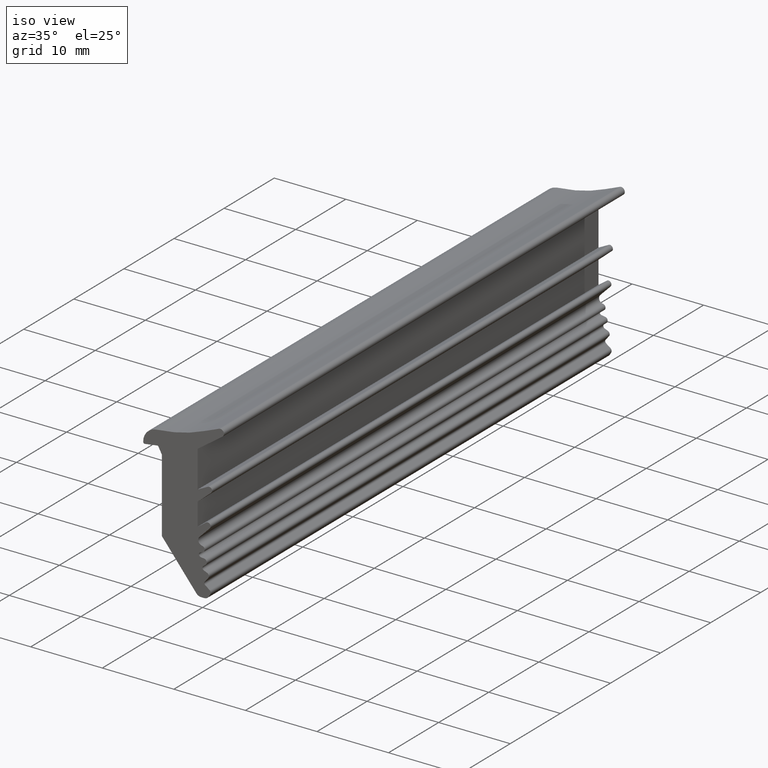
[diagram: clean part render]
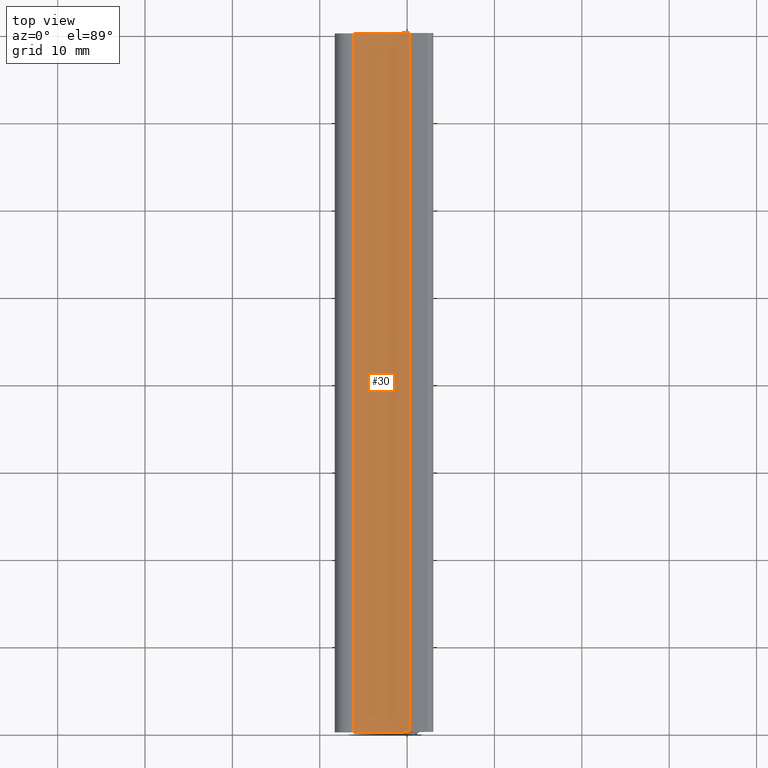
[diagram: tour spotlight — one face highlighted and labeled with its STEP entity id]
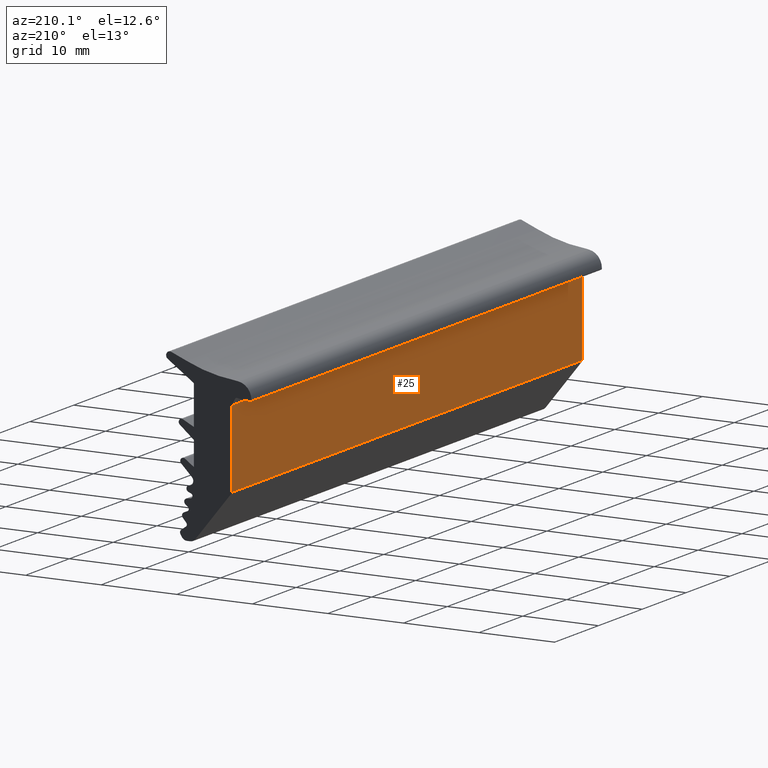
[diagram: tour spotlight — one face highlighted and labeled with its STEP entity id]
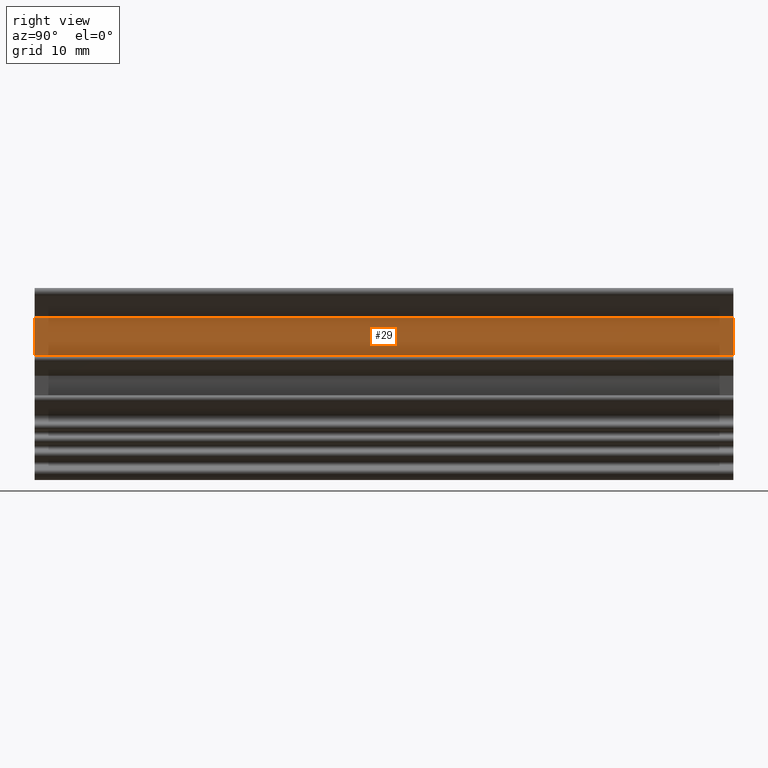
[diagram: tour spotlight — one face highlighted and labeled with its STEP entity id]
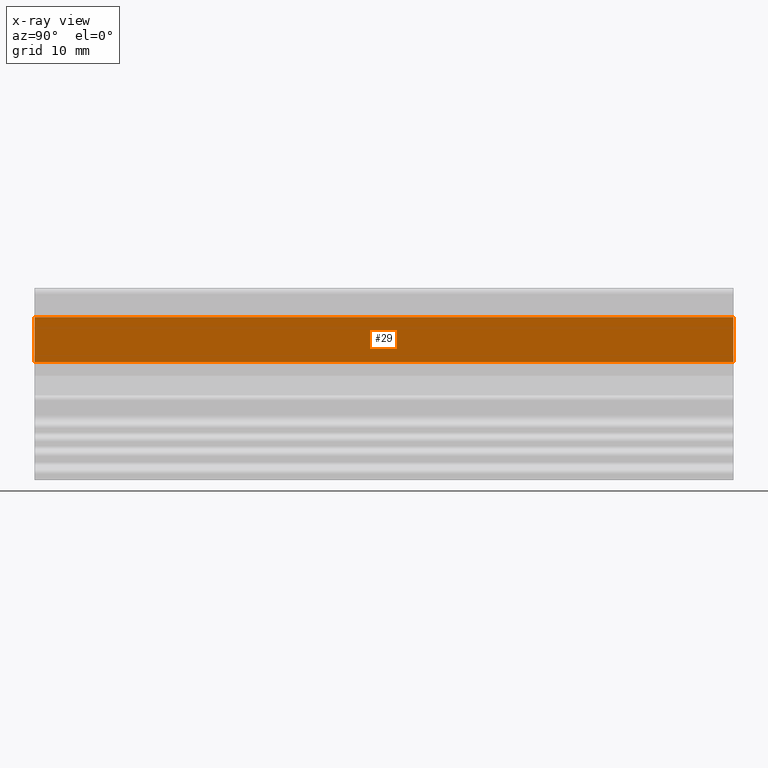
[diagram: x-ray of the same camera — body ghosted, this tour face saturated]
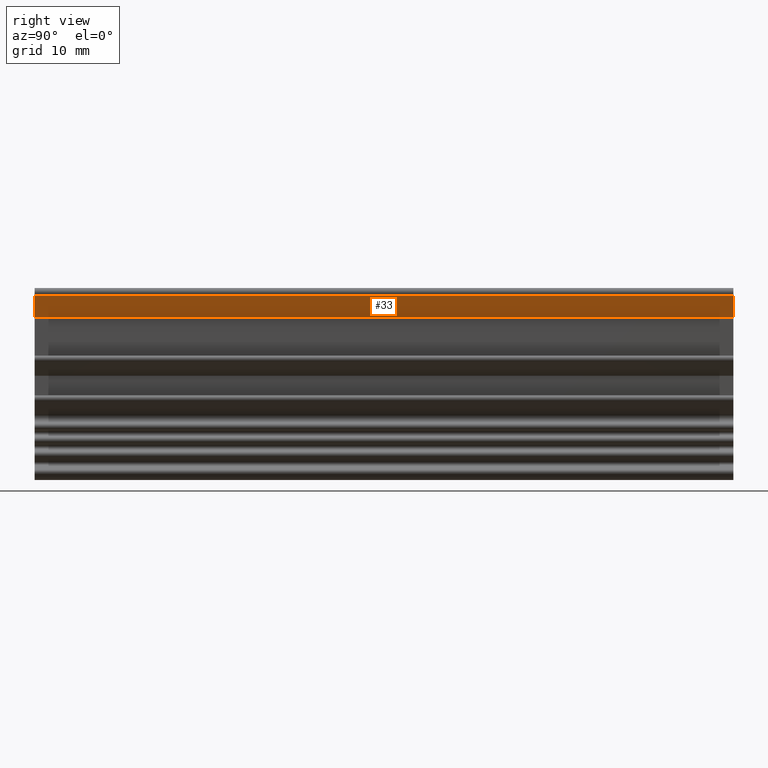
[diagram: tour spotlight — one face highlighted and labeled with its STEP entity id]
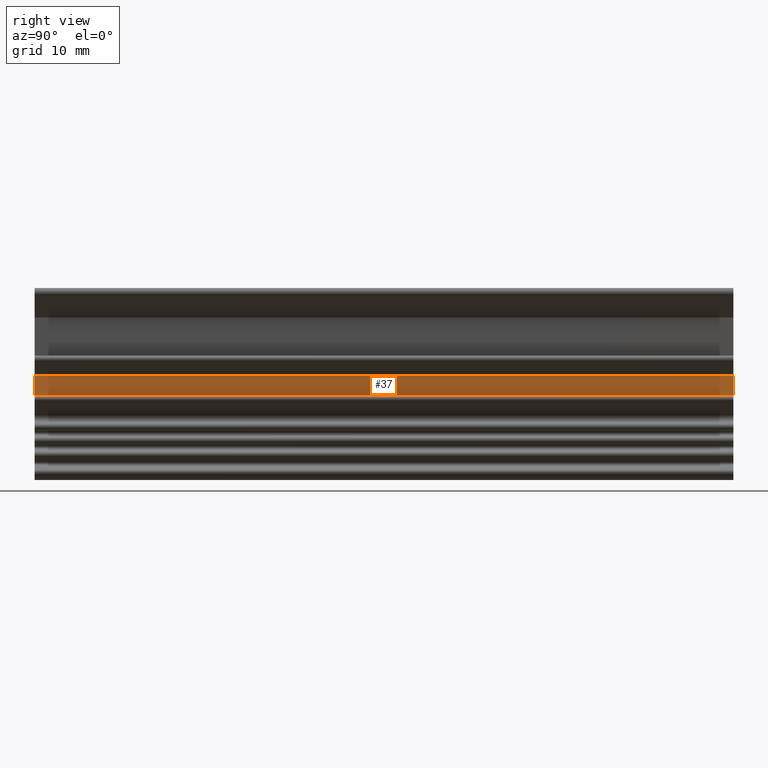
[diagram: tour spotlight — one face highlighted and labeled with its STEP entity id]
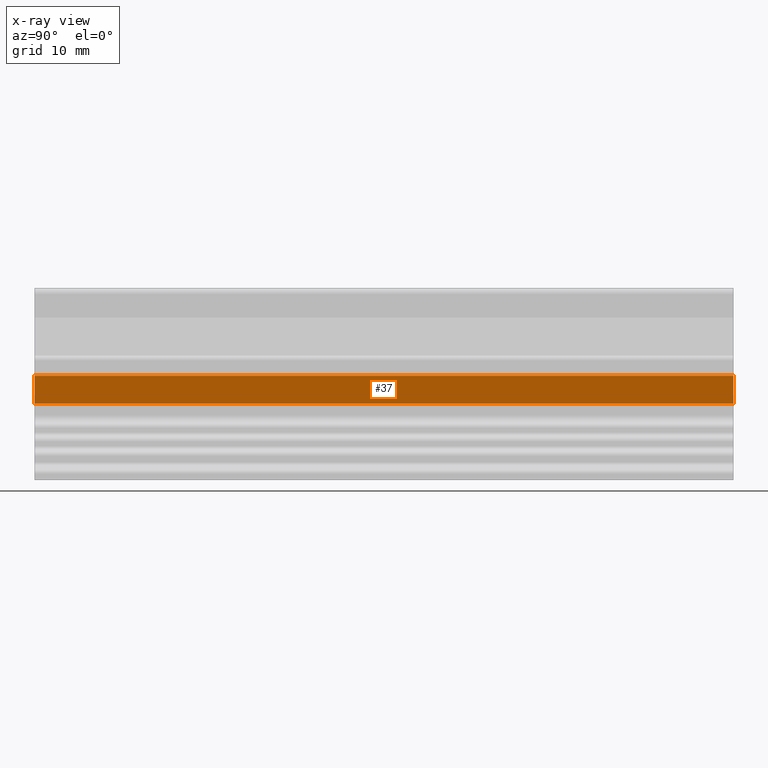
[diagram: x-ray of the same camera — body ghosted, this tour face saturated]
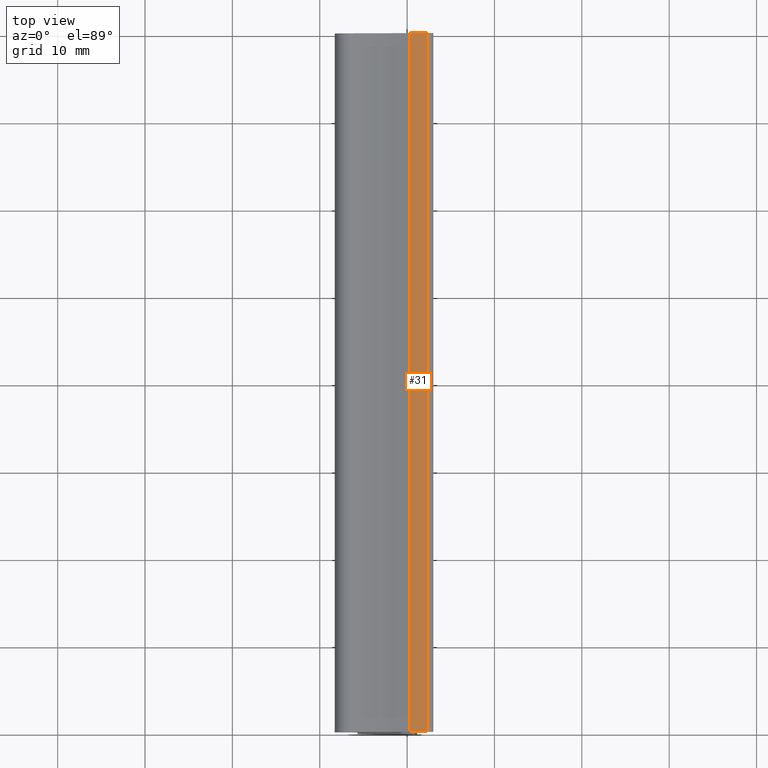
[diagram: tour spotlight — one face highlighted and labeled with its STEP entity id]
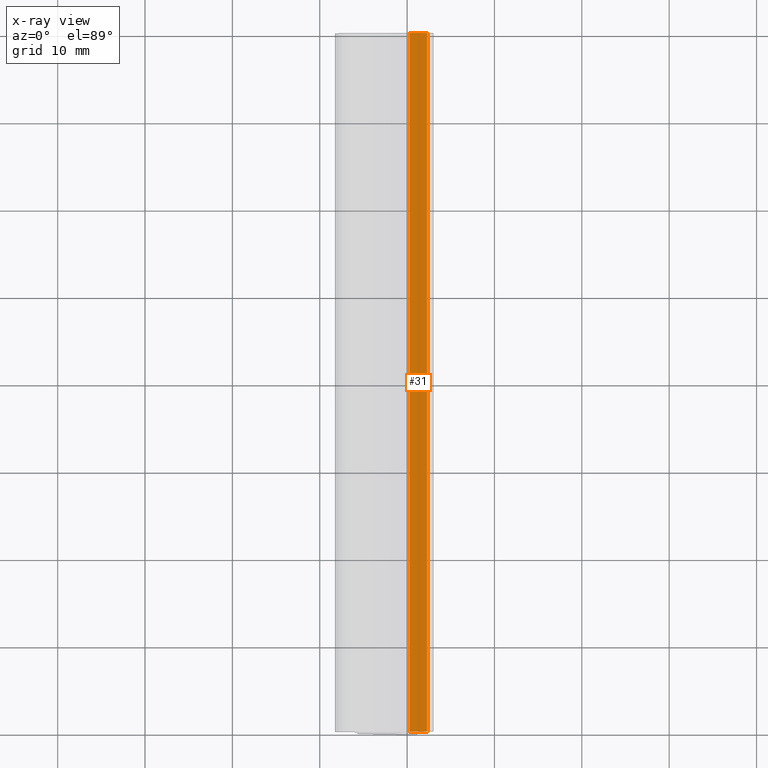
[diagram: x-ray of the same camera — body ghosted, this tour face saturated]
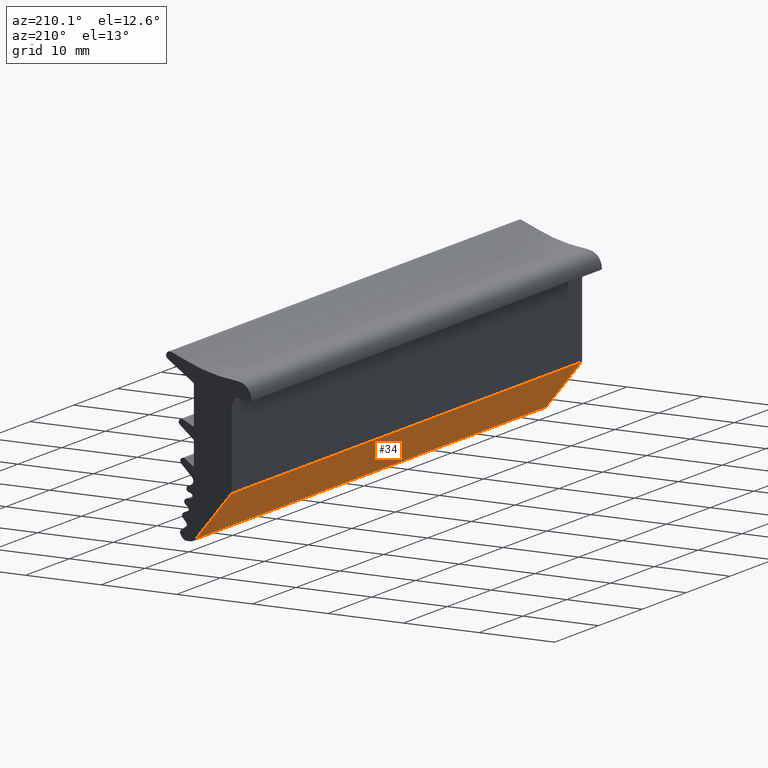
[diagram: tour spotlight — one face highlighted and labeled with its STEP entity id]
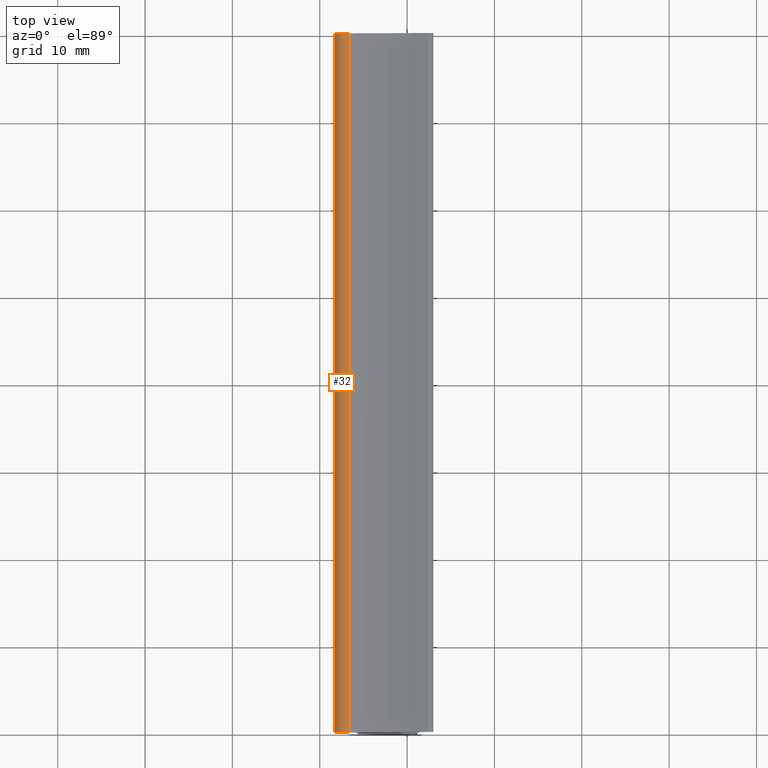
[diagram: tour spotlight — one face highlighted and labeled with its STEP entity id]
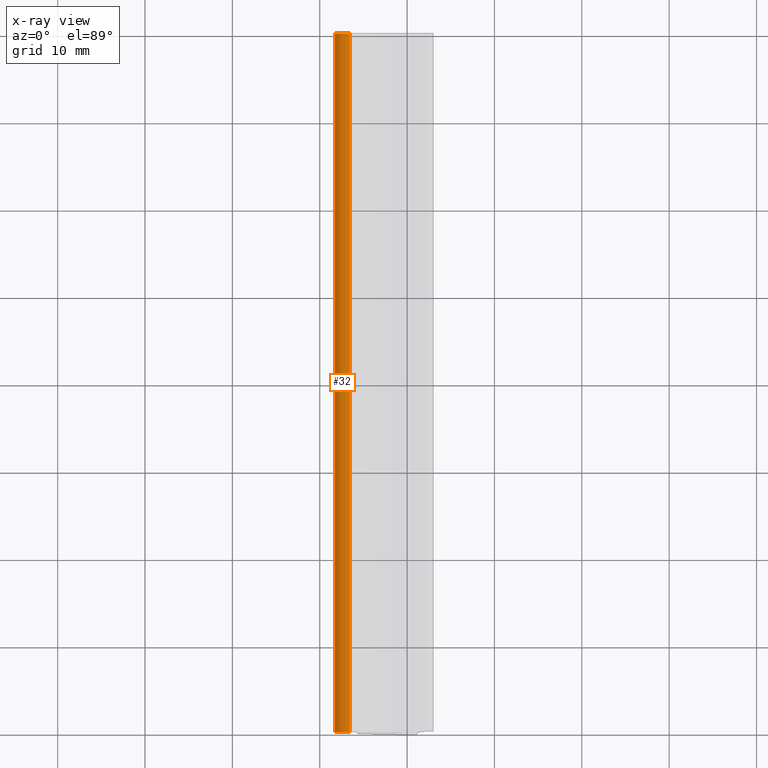
[diagram: x-ray of the same camera — body ghosted, this tour face saturated]
A machine part: a face-by-face anatomy tour. The part has 45 B-rep faces; the first image is the clean iso view, then the 8 largest visible faces are spotlighted one at a time (largest first), each with its STEP entity span.

Face 1 — top view, entity #30. In plain terms, the highlighted cylindrical surface (partial cylindrical patch) has radius 20.153 mm, axis along (0, 1, 0).
Definition (entity closure, byte-faithful):
#30 = ADVANCED_FACE ( 'NONE', ( #2000 ), #1999, .F. ) ;
#132 = AXIS2_PLACEMENT_3D ( 'NONE', #1325, #1339, #1338 ) ;
#135 = AXIS2_PLACEMENT_3D ( 'NONE', #1658, #1636, #1659 ) ;
#172 = AXIS2_PLACEMENT_3D ( 'NONE', #915, #927, #962 ) ;
#307 = ORIENTED_EDGE ( 'NONE', *, *, #615, .F. ) ;
#323 = ORIENTED_EDGE ( 'NONE', *, *, #603, .F. ) ;
#325 = ORIENTED_EDGE ( 'NONE', *, *, #627, .T. ) ;
#335 = ORIENTED_EDGE ( 'NONE', *, *, #673, .F. ) ;
#362 = EDGE_LOOP ( 'NONE', ( #335, #325, #323, #307 ) ) ;
#603 = EDGE_CURVE ( 'NONE', #1101, #1008, #1855, .T. ) ;
#615 = EDGE_CURVE ( 'NONE', #1019, #1101, #1868, .T. ) ;
#627 = EDGE_CURVE ( 'NONE', #1113, #1008, #1948, .T. ) ;
#673 = EDGE_CURVE ( 'NONE', #1113, #1019, #1957, .T. ) ;
#915 = CARTESIAN_POINT ( 'NONE',  ( -7.680258200792700100, 80.00000000000000000, 39.62568087797780000 ) ) ;
#927 = DIRECTION ( 'NONE',  ( 0.0000000000000000000, 1.000000000000000000, 0.0000000000000000000 ) ) ;
#962 = DIRECTION ( 'NONE',  ( 0.0000000000000000000, 0.0000000000000000000, 1.000000000000000000 ) ) ;
#1008 = VERTEX_POINT ( 'NONE', #1557 ) ;
#1019 = VERTEX_POINT ( 'NONE', #1552 ) ;
#1101 = VERTEX_POINT ( 'NONE', #1543 ) ;
#1113 = VERTEX_POINT ( 'NONE', #1541 ) ;
#1318 = DIRECTION ( 'NONE',  ( 0.0000000000000000000, 1.000000000000000000, 0.0000000000000000000 ) ) ;
#1325 = CARTESIAN_POINT ( 'NONE',  ( -7.680258200792700100, 0.0000000000000000000, 39.62568087797780000 ) ) ;
#1338 = DIRECTION ( 'NONE',  ( 0.0000000000000000000, 0.0000000000000000000, 1.000000000000000000 ) ) ;
#1339 = DIRECTION ( 'NONE',  ( 0.0000000000000000000, 1.000000000000000000, 0.0000000000000000000 ) ) ;
#1377 = DIRECTION ( 'NONE',  ( -0.0000000000000000000, -1.000000000000000000, -0.0000000000000000000 ) ) ;
#1378 = CARTESIAN_POINT ( 'NONE',  ( 0.2481858055058310300, 80.00000000000000000, 21.09779813389904400 ) ) ;
#1541 = CARTESIAN_POINT ( 'NONE',  ( 0.2481865698910698500, 80.00000000000000000, 21.09779846099450000 ) ) ;
#1543 = CARTESIAN_POINT ( 'NONE',  ( -6.109770962250928900, 0.0000000000000000000, 19.53398525085564000 ) ) ;
#1552 = CARTESIAN_POINT ( 'NONE',  ( 0.2481865698910698500, 0.0000000000000000000, 21.09779846099450000 ) ) ;
#1557 = CARTESIAN_POINT ( 'NONE',  ( -6.109770962250928900, 80.00000000000000000, 19.53398525085564000 ) ) ;
#1636 = DIRECTION ( 'NONE',  ( 0.0000000000000000000, 1.000000000000000000, 0.0000000000000000000 ) ) ;
#1658 = CARTESIAN_POINT ( 'NONE',  ( -7.680258200792700100, 80.00000000000000000, 39.62568087797780000 ) ) ;
#1659 = DIRECTION ( 'NONE',  ( 0.0000000000000000000, 0.0000000000000000000, 1.000000000000000000 ) ) ;
#1707 = CARTESIAN_POINT ( 'NONE',  ( -6.109770747221352500, 80.00000000000000000, 19.53398526766364200 ) ) ;
#1828 = VECTOR ( 'NONE', #1318, 1000.000000000000000 ) ;
#1844 = VECTOR ( 'NONE', #1377, 1000.000000000000000 ) ;
#1855 = LINE ( 'NONE', #1707, #1828 ) ;
#1868 = CIRCLE ( 'NONE', #132, 20.15298149999999900 ) ;
#1948 = CIRCLE ( 'NONE', #135, 20.15298149999999900 ) ;
#1957 = LINE ( 'NONE', #1378, #1844 ) ;
#1999 = CYLINDRICAL_SURFACE ( 'NONE', #172, 20.15298149999999900 ) ;
#2000 = FACE_OUTER_BOUND ( 'NONE', #362, .T. ) ;

Face 2 — auxiliary view, entity #25. In plain terms, the highlighted planar face has unit normal (-1, 0, -0).
Definition (entity closure, byte-faithful):
#25 = ADVANCED_FACE ( 'NONE', ( #2058 ), #992, .T. ) ;
#48 = AXIS2_PLACEMENT_3D ( 'NONE', #1039, #977, #976 ) ;
#251 = ORIENTED_EDGE ( 'NONE', *, *, #600, .T. ) ;
#285 = ORIENTED_EDGE ( 'NONE', *, *, #591, .T. ) ;
#401 = ORIENTED_EDGE ( 'NONE', *, *, #616, .T. ) ;
#493 = EDGE_LOOP ( 'NONE', ( #285, #543, #251, #401 ) ) ;
#543 = ORIENTED_EDGE ( 'NONE', *, *, #678, .T. ) ;
#591 = EDGE_CURVE ( 'NONE', #1002, #1022, #1880, .T. ) ;
#600 = EDGE_CURVE ( 'NONE', #1296, #1290, #1866, .T. ) ;
#616 = EDGE_CURVE ( 'NONE', #1290, #1002, #1936, .T. ) ;
#678 = EDGE_CURVE ( 'NONE', #1022, #1296, #1752, .T. ) ;
#976 = DIRECTION ( 'NONE',  ( -1.703246704734860000E-016, 0.0000000000000000000, 1.000000000000000000 ) ) ;
#977 = DIRECTION ( 'NONE',  ( -1.000000000000000000, 0.0000000000000000000, -1.703246704734860000E-016 ) ) ;
#992 = PLANE ( 'NONE',  #48 ) ;
#1002 = VERTEX_POINT ( 'NONE', #1560 ) ;
#1022 = VERTEX_POINT ( 'NONE', #1550 ) ;
#1039 = CARTESIAN_POINT ( 'NONE',  ( -5.679563955479530100, 80.00200000000001000, 11.45032763000630100 ) ) ;
#1290 = VERTEX_POINT ( 'NONE', #1499 ) ;
#1296 = VERTEX_POINT ( 'NONE', #1495 ) ;
#1347 = DIRECTION ( 'NONE',  ( -0.0000000000000000000, -1.000000000000000000, -0.0000000000000000000 ) ) ;
#1495 = CARTESIAN_POINT ( 'NONE',  ( -5.679563955478427900, 80.00000000000000000, 16.54272989667383300 ) ) ;
#1499 = CARTESIAN_POINT ( 'NONE',  ( -5.679563955479529200, 80.00000000000500200, 6.357925363344870500 ) ) ;
#1550 = CARTESIAN_POINT ( 'NONE',  ( -5.679563955478449200, 0.0000000000000000000, 16.54272989667387600 ) ) ;
#1560 = CARTESIAN_POINT ( 'NONE',  ( -5.679563955479529200, 0.0000000000000000000, 6.357925363344870500 ) ) ;
#1586 = CARTESIAN_POINT ( 'NONE',  ( -5.679563955479529200, 80.00200000000001000, 6.357925363349870000 ) ) ;
#1613 = DIRECTION ( 'NONE',  ( 0.0000000000000000000, 1.000000000000000000, 0.0000000000000000000 ) ) ;
#1614 = CARTESIAN_POINT ( 'NONE',  ( -5.679563955479531000, 80.00200000000001000, 16.54272989667280000 ) ) ;
#1752 = LINE ( 'NONE', #1614, #1791 ) ;
#1791 = VECTOR ( 'NONE', #1613, 1000.000000000000000 ) ;
#1835 = VECTOR ( 'NONE', #1347, 1000.000000000000000 ) ;
#1842 = VECTOR ( 'NONE', #1966, 1000.000000000000000 ) ;
#1866 = LINE ( 'NONE', #1965, #1842 ) ;
#1880 = LINE ( 'NONE', #1960, #1906 ) ;
#1906 = VECTOR ( 'NONE', #1962, 1000.000000000000000 ) ;
#1936 = LINE ( 'NONE', #1586, #1835 ) ;
#1960 = CARTESIAN_POINT ( 'NONE',  ( -5.679563955479530100, 0.0000000000000000000, 11.45032763000630100 ) ) ;
#1962 = DIRECTION ( 'NONE',  ( -1.703246704734860000E-016, 0.0000000000000000000, 1.000000000000000000 ) ) ;
#1965 = CARTESIAN_POINT ( 'NONE',  ( -5.679563955479530100, 80.00000000000000000, 11.45032763000630100 ) ) ;
#1966 = DIRECTION ( 'NONE',  ( 1.703246704734860000E-016, -0.0000000000000000000, -1.000000000000000000 ) ) ;
#2058 = FACE_OUTER_BOUND ( 'NONE', #493, .T. ) ;

Face 3 — right view, entity #29. An x-ray twin of the same camera follows (body ghosted, this face saturated) — the face is partly hidden behind the body. In plain terms, the highlighted planar face has unit normal (-1, 0, -0).
Definition (entity closure, byte-faithful):
#29 = ADVANCED_FACE ( 'NONE', ( #2008 ), #938, .F. ) ;
#188 = AXIS2_PLACEMENT_3D ( 'NONE', #939, #926, #925 ) ;
#208 = ORIENTED_EDGE ( 'NONE', *, *, #733, .T. ) ;
#305 = EDGE_LOOP ( 'NONE', ( #438, #439, #208, #415 ) ) ;
#415 = ORIENTED_EDGE ( 'NONE', *, *, #700, .F. ) ;
#438 = ORIENTED_EDGE ( 'NONE', *, *, #629, .F. ) ;
#439 = ORIENTED_EDGE ( 'NONE', *, *, #699, .T. ) ;
#629 = EDGE_CURVE ( 'NONE', #1300, #1279, #1884, .T. ) ;
#699 = EDGE_CURVE ( 'NONE', #1300, #1027, #1722, .T. ) ;
#700 = EDGE_CURVE ( 'NONE', #1279, #864, #1720, .T. ) ;
#733 = EDGE_CURVE ( 'NONE', #1027, #864, #1737, .T. ) ;
#864 = VERTEX_POINT ( 'NONE', #1574 ) ;
#925 = DIRECTION ( 'NONE',  ( -1.233365103671440100E-016, 0.0000000000000000000, 1.000000000000000000 ) ) ;
#926 = DIRECTION ( 'NONE',  ( -1.000000000000000000, 0.0000000000000000000, -1.233365103671440100E-016 ) ) ;
#938 = PLANE ( 'NONE',  #188 ) ;
#939 = CARTESIAN_POINT ( 'NONE',  ( -0.6795639554795269700, 80.00200000000001000, 9.368864531527640000 ) ) ;
#1027 = VERTEX_POINT ( 'NONE', #1549 ) ;
#1279 = VERTEX_POINT ( 'NONE', #1510 ) ;
#1300 = VERTEX_POINT ( 'NONE', #1493 ) ;
#1349 = CARTESIAN_POINT ( 'NONE',  ( -0.6795639554795279700, 0.0000000000000000000, 8.901853455270750000 ) ) ;
#1456 = CARTESIAN_POINT ( 'NONE',  ( -0.6795639554795279700, 80.00000000000000000, 8.901853455270750000 ) ) ;
#1457 = DIRECTION ( 'NONE',  ( -0.0000000000000000000, 0.0000000000000000000, 1.000000000000000000 ) ) ;
#1461 = DIRECTION ( 'NONE',  ( -0.0000000000000000000, 0.0000000000000000000, 1.000000000000000000 ) ) ;
#1493 = CARTESIAN_POINT ( 'NONE',  ( -0.6795639554774786100, 80.00000000000166300, 13.46174833956209600 ) ) ;
#1510 = CARTESIAN_POINT ( 'NONE',  ( -0.6795639554774786100, -9.251858538542970600E-015, 13.46174833956209600 ) ) ;
#1549 = CARTESIAN_POINT ( 'NONE',  ( -0.6795639554790631200, 80.00000000000000000, 18.59899661261932400 ) ) ;
#1574 = CARTESIAN_POINT ( 'NONE',  ( -0.6795639554790631200, 0.0000000000000000000, 18.59899661261965100 ) ) ;
#1620 = DIRECTION ( 'NONE',  ( -0.0000000000000000000, -1.000000000000000000, 0.0000000000000000000 ) ) ;
#1621 = CARTESIAN_POINT ( 'NONE',  ( -0.6795639554781334200, 80.00000000000000000, 18.59899661261834300 ) ) ;
#1646 = DIRECTION ( 'NONE',  ( -0.0000000000000000000, -1.000000000000000000, -0.0000000000000000000 ) ) ;
#1647 = CARTESIAN_POINT ( 'NONE',  ( -0.6795639554795275300, 80.00200000000001000, 13.46174833956610000 ) ) ;
#1720 = LINE ( 'NONE', #1349, #1724 ) ;
#1722 = LINE ( 'NONE', #1456, #1723 ) ;
#1723 = VECTOR ( 'NONE', #1457, 1000.000000000000000 ) ;
#1724 = VECTOR ( 'NONE', #1461, 1000.000000000000000 ) ;
#1737 = LINE ( 'NONE', #1621, #1738 ) ;
#1738 = VECTOR ( 'NONE', #1620, 1000.000000000000000 ) ;
#1882 = VECTOR ( 'NONE', #1646, 1000.000000000000000 ) ;
#1884 = LINE ( 'NONE', #1647, #1882 ) ;
#2008 = FACE_OUTER_BOUND ( 'NONE', #305, .T. ) ;

Face 4 — right view, entity #33. In plain terms, the highlighted planar face has unit normal (-0.5797, 0, 0.8148).
Definition (entity closure, byte-faithful):
#33 = ADVANCED_FACE ( 'NONE', ( #2120 ), #890, .F. ) ;
#187 = AXIS2_PLACEMENT_3D ( 'NONE', #891, #879, #878 ) ;
#212 = ORIENTED_EDGE ( 'NONE', *, *, #630, .F. ) ;
#309 = ORIENTED_EDGE ( 'NONE', *, *, #739, .F. ) ;
#361 = EDGE_LOOP ( 'NONE', ( #440, #309, #212, #446 ) ) ;
#440 = ORIENTED_EDGE ( 'NONE', *, *, #618, .T. ) ;
#446 = ORIENTED_EDGE ( 'NONE', *, *, #733, .F. ) ;
#618 = EDGE_CURVE ( 'NONE', #1027, #1285, #1950, .T. ) ;
#630 = EDGE_CURVE ( 'NONE', #864, #1156, #1826, .T. ) ;
#733 = EDGE_CURVE ( 'NONE', #1027, #864, #1737, .T. ) ;
#739 = EDGE_CURVE ( 'NONE', #1156, #1285, #1744, .T. ) ;
#864 = VERTEX_POINT ( 'NONE', #1574 ) ;
#878 = DIRECTION ( 'NONE',  ( 0.8148313311435527700, 0.0000000000000000000, 0.5796981126300359000 ) ) ;
#879 = DIRECTION ( 'NONE',  ( -0.5796981126300359000, 0.0000000000000000000, 0.8148313311435527700 ) ) ;
#890 = PLANE ( 'NONE',  #187 ) ;
#891 = CARTESIAN_POINT ( 'NONE',  ( 2.788702692518199900, 80.00000000000000000, 21.06643687061570000 ) ) ;
#1027 = VERTEX_POINT ( 'NONE', #1549 ) ;
#1156 = VERTEX_POINT ( 'NONE', #1539 ) ;
#1285 = VERTEX_POINT ( 'NONE', #1504 ) ;
#1352 = DIRECTION ( 'NONE',  ( 0.0000000000000000000, 1.000000000000000000, -0.0000000000000000000 ) ) ;
#1362 = CARTESIAN_POINT ( 'NONE',  ( -0.6795639554795279700, 80.00000000000000000, 18.59899661262030100 ) ) ;
#1363 = DIRECTION ( 'NONE',  ( 0.8148313311438800700, 0.0000000000000000000, 0.5796981126295758200 ) ) ;
#1504 = CARTESIAN_POINT ( 'NONE',  ( 2.788702692518207000, 80.00000000000000000, 21.06643687061568900 ) ) ;
#1539 = CARTESIAN_POINT ( 'NONE',  ( 2.788702692518207000, 0.0000000000000000000, 21.06643687061568900 ) ) ;
#1549 = CARTESIAN_POINT ( 'NONE',  ( -0.6795639554790631200, 80.00000000000000000, 18.59899661261932400 ) ) ;
#1574 = CARTESIAN_POINT ( 'NONE',  ( -0.6795639554790631200, 0.0000000000000000000, 18.59899661261965100 ) ) ;
#1620 = DIRECTION ( 'NONE',  ( -0.0000000000000000000, -1.000000000000000000, 0.0000000000000000000 ) ) ;
#1621 = CARTESIAN_POINT ( 'NONE',  ( -0.6795639554781334200, 80.00000000000000000, 18.59899661261834300 ) ) ;
#1651 = DIRECTION ( 'NONE',  ( 0.8148313311438800700, 0.0000000000000000000, 0.5796981126295758200 ) ) ;
#1652 = CARTESIAN_POINT ( 'NONE',  ( -0.6795639554795279700, 0.0000000000000000000, 18.59899661262030100 ) ) ;
#1684 = CARTESIAN_POINT ( 'NONE',  ( 2.788702692518199900, 80.00000000000000000, 21.06643687061570000 ) ) ;
#1737 = LINE ( 'NONE', #1621, #1738 ) ;
#1738 = VECTOR ( 'NONE', #1620, 1000.000000000000000 ) ;
#1744 = LINE ( 'NONE', #1684, #1745 ) ;
#1745 = VECTOR ( 'NONE', #1352, 1000.000000000000000 ) ;
#1826 = LINE ( 'NONE', #1652, #1885 ) ;
#1833 = VECTOR ( 'NONE', #1363, 1000.000000000000000 ) ;
#1885 = VECTOR ( 'NONE', #1651, 1000.000000000000000 ) ;
#1950 = LINE ( 'NONE', #1362, #1833 ) ;
#2120 = FACE_OUTER_BOUND ( 'NONE', #361, .T. ) ;

Face 5 — right view, entity #37. An x-ray twin of the same camera follows (body ghosted, this face saturated) — the face is partly hidden behind the body. In plain terms, the highlighted planar face has unit normal (-1, 0, -0).
Definition (entity closure, byte-faithful):
#37 = ADVANCED_FACE ( 'NONE', ( #2086 ), #842, .F. ) ;
#175 = AXIS2_PLACEMENT_3D ( 'NONE', #852, #1301, #1239 ) ;
#314 = ORIENTED_EDGE ( 'NONE', *, *, #674, .F. ) ;
#321 = ORIENTED_EDGE ( 'NONE', *, *, #592, .T. ) ;
#322 = ORIENTED_EDGE ( 'NONE', *, *, #594, .T. ) ;
#324 = ORIENTED_EDGE ( 'NONE', *, *, #668, .F. ) ;
#474 = EDGE_LOOP ( 'NONE', ( #314, #322, #321, #324 ) ) ;
#592 = EDGE_CURVE ( 'NONE', #1006, #997, #1875, .T. ) ;
#594 = EDGE_CURVE ( 'NONE', #1030, #1006, #1949, .T. ) ;
#668 = EDGE_CURVE ( 'NONE', #1268, #997, #1846, .T. ) ;
#674 = EDGE_CURVE ( 'NONE', #1030, #1268, #1787, .T. ) ;
#842 = PLANE ( 'NONE',  #175 ) ;
#852 = CARTESIAN_POINT ( 'NONE',  ( -0.6795639554795269700, 80.00200000000001000, 9.368864531527640000 ) ) ;
#997 = VERTEX_POINT ( 'NONE', #1562 ) ;
#1006 = VERTEX_POINT ( 'NONE', #1558 ) ;
#1030 = VERTEX_POINT ( 'NONE', #1547 ) ;
#1239 = DIRECTION ( 'NONE',  ( -1.233365103671440100E-016, 0.0000000000000000000, 1.000000000000000000 ) ) ;
#1268 = VERTEX_POINT ( 'NONE', #1520 ) ;
#1301 = DIRECTION ( 'NONE',  ( -1.000000000000000000, 0.0000000000000000000, -1.233365103671440100E-016 ) ) ;
#1376 = DIRECTION ( 'NONE',  ( -0.0000000000000000000, 0.0000000000000000000, 1.000000000000000000 ) ) ;
#1394 = CARTESIAN_POINT ( 'NONE',  ( -0.6795639554795268600, 80.00200000000001000, 8.761659686552729200 ) ) ;
#1395 = DIRECTION ( 'NONE',  ( -0.0000000000000000000, -1.000000000000000000, -0.0000000000000000000 ) ) ;
#1415 = CARTESIAN_POINT ( 'NONE',  ( -0.6795639554795269700, 0.0000000000000000000, 8.901853455270750000 ) ) ;
#1520 = CARTESIAN_POINT ( 'NONE',  ( -0.6795639554768067000, 0.0000000000000000000, 8.761659686548952700 ) ) ;
#1547 = CARTESIAN_POINT ( 'NONE',  ( -0.6795639554768068100, 80.00000000000332500, 8.761659686548952700 ) ) ;
#1558 = CARTESIAN_POINT ( 'NONE',  ( -0.6795639554792969300, 80.00000000000000000, 11.93140918871794300 ) ) ;
#1562 = CARTESIAN_POINT ( 'NONE',  ( -0.6795639554792970400, 0.0000000000000000000, 11.93140918871803200 ) ) ;
#1785 = VECTOR ( 'NONE', #1395, 1000.000000000000000 ) ;
#1787 = LINE ( 'NONE', #1394, #1785 ) ;
#1846 = LINE ( 'NONE', #1415, #1923 ) ;
#1865 = VECTOR ( 'NONE', #1978, 1000.000000000000000 ) ;
#1875 = LINE ( 'NONE', #1959, #1898 ) ;
#1898 = VECTOR ( 'NONE', #1970, 1000.000000000000000 ) ;
#1923 = VECTOR ( 'NONE', #1376, 1000.000000000000000 ) ;
#1949 = LINE ( 'NONE', #1982, #1865 ) ;
#1959 = CARTESIAN_POINT ( 'NONE',  ( -0.6795639554788368600, 80.00000000000000000, 11.93140918871749400 ) ) ;
#1970 = DIRECTION ( 'NONE',  ( -0.0000000000000000000, -1.000000000000000000, 0.0000000000000000000 ) ) ;
#1978 = DIRECTION ( 'NONE',  ( -0.0000000000000000000, 0.0000000000000000000, 1.000000000000000000 ) ) ;
#1982 = CARTESIAN_POINT ( 'NONE',  ( -0.6795639554795269700, 80.00000000000000000, 8.901853455270750000 ) ) ;
#2086 = FACE_OUTER_BOUND ( 'NONE', #474, .T. ) ;

Face 6 — top view, entity #31. An x-ray twin of the same camera follows (body ghosted, this face saturated) — the face is partly hidden behind the body. In plain terms, the highlighted planar face has unit normal (0.3769, 0, -0.9262).
Definition (entity closure, byte-faithful):
#31 = ADVANCED_FACE ( 'NONE', ( #1991 ), #913, .F. ) ;
#156 = AXIS2_PLACEMENT_3D ( 'NONE', #914, #903, #902 ) ;
#214 = ORIENTED_EDGE ( 'NONE', *, *, #744, .T. ) ;
#296 = ORIENTED_EDGE ( 'NONE', *, *, #746, .F. ) ;
#302 = ORIENTED_EDGE ( 'NONE', *, *, #698, .F. ) ;
#303 = ORIENTED_EDGE ( 'NONE', *, *, #673, .T. ) ;
#312 = EDGE_LOOP ( 'NONE', ( #296, #214, #303, #302 ) ) ;
#673 = EDGE_CURVE ( 'NONE', #1113, #1019, #1957, .T. ) ;
#698 = EDGE_CURVE ( 'NONE', #1306, #1019, #1790, .T. ) ;
#744 = EDGE_CURVE ( 'NONE', #1255, #1113, #1756, .T. ) ;
#746 = EDGE_CURVE ( 'NONE', #1255, #1306, #1763, .T. ) ;
#902 = DIRECTION ( 'NONE',  ( -0.9262463133118958900, 0.0000000000000000000, -0.3769187804768039400 ) ) ;
#903 = DIRECTION ( 'NONE',  ( 0.3769187804768039900, 0.0000000000000000000, -0.9262463133118960000 ) ) ;
#913 = PLANE ( 'NONE',  #156 ) ;
#914 = CARTESIAN_POINT ( 'NONE',  ( 0.2481857938118860200, 80.00000000000000000, 21.09779816122650000 ) ) ;
#1019 = VERTEX_POINT ( 'NONE', #1552 ) ;
#1113 = VERTEX_POINT ( 'NONE', #1541 ) ;
#1255 = VERTEX_POINT ( 'NONE', #1531 ) ;
#1306 = VERTEX_POINT ( 'NONE', #1490 ) ;
#1369 = DIRECTION ( 'NONE',  ( -0.0000000000000000000, -1.000000000000000000, -0.0000000000000000000 ) ) ;
#1377 = DIRECTION ( 'NONE',  ( -0.0000000000000000000, -1.000000000000000000, -0.0000000000000000000 ) ) ;
#1378 = CARTESIAN_POINT ( 'NONE',  ( 0.2481858055058310300, 80.00000000000000000, 21.09779813389904400 ) ) ;
#1424 = DIRECTION ( 'NONE',  ( -0.9262463133119052100, 0.0000000000000000000, -0.3769187804767812300 ) ) ;
#1433 = DIRECTION ( 'NONE',  ( -0.9262463133119052100, 0.0000000000000000000, -0.3769187804767812300 ) ) ;
#1442 = CARTESIAN_POINT ( 'NONE',  ( 2.310394245966140000, 0.0000000000000000000, 21.93697569284399800 ) ) ;
#1490 = CARTESIAN_POINT ( 'NONE',  ( 2.310394245966135100, -1.040834085586084300E-014, 21.93697569284400800 ) ) ;
#1531 = CARTESIAN_POINT ( 'NONE',  ( 2.310394245966135100, 80.00000000000000000, 21.93697569284400800 ) ) ;
#1541 = CARTESIAN_POINT ( 'NONE',  ( 0.2481865698910698500, 80.00000000000000000, 21.09779846099450000 ) ) ;
#1552 = CARTESIAN_POINT ( 'NONE',  ( 0.2481865698910698500, 0.0000000000000000000, 21.09779846099450000 ) ) ;
#1587 = CARTESIAN_POINT ( 'NONE',  ( 2.310394245966140000, 80.00000000000000000, 21.93697569284399800 ) ) ;
#1588 = CARTESIAN_POINT ( 'NONE',  ( 2.310394245966120400, 80.00000000000000000, 21.93697569284404700 ) ) ;
#1755 = VECTOR ( 'NONE', #1433, 999.9999999999998900 ) ;
#1756 = LINE ( 'NONE', #1587, #1757 ) ;
#1757 = VECTOR ( 'NONE', #1424, 999.9999999999998900 ) ;
#1763 = LINE ( 'NONE', #1588, #1764 ) ;
#1764 = VECTOR ( 'NONE', #1369, 1000.000000000000000 ) ;
#1790 = LINE ( 'NONE', #1442, #1755 ) ;
#1844 = VECTOR ( 'NONE', #1377, 1000.000000000000000 ) ;
#1957 = LINE ( 'NONE', #1378, #1844 ) ;
#1991 = FACE_OUTER_BOUND ( 'NONE', #312, .T. ) ;

Face 7 — auxiliary view, entity #34. In plain terms, the highlighted planar face has unit normal (0.7767, 0, 0.6299).
Definition (entity closure, byte-faithful):
#34 = ADVANCED_FACE ( 'NONE', ( #2118 ), #880, .F. ) ;
#171 = AXIS2_PLACEMENT_3D ( 'NONE', #901, #867, #866 ) ;
#294 = ORIENTED_EDGE ( 'NONE', *, *, #745, .F. ) ;
#344 = ORIENTED_EDGE ( 'NONE', *, *, #598, .F. ) ;
#345 = ORIENTED_EDGE ( 'NONE', *, *, #669, .T. ) ;
#397 = EDGE_LOOP ( 'NONE', ( #344, #345, #294, #419 ) ) ;
#419 = ORIENTED_EDGE ( 'NONE', *, *, #670, .F. ) ;
#598 = EDGE_CURVE ( 'NONE', #916, #1305, #1867, .T. ) ;
#669 = EDGE_CURVE ( 'NONE', #916, #1269, #1823, .T. ) ;
#670 = EDGE_CURVE ( 'NONE', #1305, #1283, #1922, .T. ) ;
#745 = EDGE_CURVE ( 'NONE', #1283, #1269, #1758, .T. ) ;
#866 = DIRECTION ( 'NONE',  ( 0.6298590774056890300, 0.0000000000000000000, -0.7767094325483979700 ) ) ;
#867 = DIRECTION ( 'NONE',  ( 0.7767094325483979700, 0.0000000000000000000, 0.6298590774056890300 ) ) ;
#880 = PLANE ( 'NONE',  #171 ) ;
#901 = CARTESIAN_POINT ( 'NONE',  ( -0.8715574779113650600, 80.00000000000000000, 0.3230216657280560200 ) ) ;
#916 = VERTEX_POINT ( 'NONE', #1569 ) ;
#1269 = VERTEX_POINT ( 'NONE', #1519 ) ;
#1283 = VERTEX_POINT ( 'NONE', #1506 ) ;
#1305 = VERTEX_POINT ( 'NONE', #1491 ) ;
#1390 = DIRECTION ( 'NONE',  ( 0.6298590774056884700, 0.0000000000000000000, -0.7767094325483983000 ) ) ;
#1392 = DIRECTION ( 'NONE',  ( 0.6298590774056884700, 0.0000000000000000000, -0.7767094325483983000 ) ) ;
#1393 = CARTESIAN_POINT ( 'NONE',  ( -5.620414021402529800, 80.00000000000000000, 6.179064395700550000 ) ) ;
#1412 = CARTESIAN_POINT ( 'NONE',  ( -5.620414021402529800, 0.0000000000000000000, 6.179064395700550000 ) ) ;
#1422 = CARTESIAN_POINT ( 'NONE',  ( -0.8715574779113802700, 80.00000000000000000, 0.3230216657280748400 ) ) ;
#1423 = DIRECTION ( 'NONE',  ( -0.0000000000000000000, 1.000000000000000000, 0.0000000000000000000 ) ) ;
#1491 = CARTESIAN_POINT ( 'NONE',  ( -5.620414021402822900, 0.0000000000000000000, 6.179064395700881300 ) ) ;
#1506 = CARTESIAN_POINT ( 'NONE',  ( -0.8715574779113834900, -1.040834085586084300E-014, 0.3230216657280721200 ) ) ;
#1519 = CARTESIAN_POINT ( 'NONE',  ( -0.8715574779113834900, 80.00000000000000000, 0.3230216657280721200 ) ) ;
#1569 = CARTESIAN_POINT ( 'NONE',  ( -5.620414021402815800, 80.00000000000500200, 6.179064395700888400 ) ) ;
#1758 = LINE ( 'NONE', #1422, #1762 ) ;
#1762 = VECTOR ( 'NONE', #1423, 1000.000000000000000 ) ;
#1797 = VECTOR ( 'NONE', #1390, 1000.000000000000100 ) ;
#1823 = LINE ( 'NONE', #1393, #1929 ) ;
#1859 = VECTOR ( 'NONE', #1967, 1000.000000000000000 ) ;
#1867 = LINE ( 'NONE', #1968, #1859 ) ;
#1922 = LINE ( 'NONE', #1412, #1797 ) ;
#1929 = VECTOR ( 'NONE', #1392, 1000.000000000000100 ) ;
#1967 = DIRECTION ( 'NONE',  ( -0.0000000000000000000, -1.000000000000000000, -0.0000000000000000000 ) ) ;
#1968 = CARTESIAN_POINT ( 'NONE',  ( -5.620414021402560000, 80.00000000000000000, 6.179064395700527800 ) ) ;
#2118 = FACE_OUTER_BOUND ( 'NONE', #397, .T. ) ;

Face 8 — top view, entity #32. An x-ray twin of the same camera follows (body ghosted, this face saturated) — the face is partly hidden behind the body. In plain terms, the highlighted cylindrical surface (edge-blend (fillet) strip) has radius 2 mm, axis along (0, 1, 0).
Definition (entity closure, byte-faithful):
#32 = ADVANCED_FACE ( 'NONE', ( #2161 ), #2158, .T. ) ;
#67 = AXIS2_PLACEMENT_3D ( 'NONE', #1662, #1635, #1640 ) ;
#128 = AXIS2_PLACEMENT_3D ( 'NONE', #1677, #1629, #1696 ) ;
#143 = AXIS2_PLACEMENT_3D ( 'NONE', #892, #905, #924 ) ;
#278 = ORIENTED_EDGE ( 'NONE', *, *, #634, .T. ) ;
#306 = ORIENTED_EDGE ( 'NONE', *, *, #694, .T. ) ;
#336 = ORIENTED_EDGE ( 'NONE', *, *, #650, .T. ) ;
#343 = EDGE_LOOP ( 'NONE', ( #278, #306, #524, #336 ) ) ;
#524 = ORIENTED_EDGE ( 'NONE', *, *, #638, .F. ) ;
#634 = EDGE_CURVE ( 'NONE', #1282, #1273, #1878, .T. ) ;
#638 = EDGE_CURVE ( 'NONE', #1280, #1277, #1931, .T. ) ;
#650 = EDGE_CURVE ( 'NONE', #1280, #1282, #1901, .T. ) ;
#694 = EDGE_CURVE ( 'NONE', #1273, #1277, #1803, .T. ) ;
#892 = CARTESIAN_POINT ( 'NONE',  ( -6.288488886701889800, 80.00000000000000000, 17.48581138143060100 ) ) ;
#905 = DIRECTION ( 'NONE',  ( 0.0000000000000000000, 1.000000000000000000, 0.0000000000000000000 ) ) ;
#924 = DIRECTION ( 'NONE',  ( 0.0000000000000000000, 0.0000000000000000000, 1.000000000000000000 ) ) ;
#1273 = VERTEX_POINT ( 'NONE', #1515 ) ;
#1277 = VERTEX_POINT ( 'NONE', #1511 ) ;
#1280 = VERTEX_POINT ( 'NONE', #1509 ) ;
#1282 = VERTEX_POINT ( 'NONE', #1507 ) ;
#1348 = DIRECTION ( 'NONE',  ( -0.0000000000000000000, -1.000000000000000000, -0.0000000000000000000 ) ) ;
#1353 = CARTESIAN_POINT ( 'NONE',  ( -8.288121736369763700, 80.00000000000000000, 17.44749080563719800 ) ) ;
#1507 = CARTESIAN_POINT ( 'NONE',  ( -6.581045914408424100, 80.00000000000000000, 19.46429827437163200 ) ) ;
#1509 = CARTESIAN_POINT ( 'NONE',  ( -6.581045914408424100, 0.0000000000000000000, 19.46429827437163200 ) ) ;
#1511 = CARTESIAN_POINT ( 'NONE',  ( -8.288121736369797400, 0.0000000000000000000, 17.44749080563719800 ) ) ;
#1515 = CARTESIAN_POINT ( 'NONE',  ( -8.288121736369797400, 80.00000000000000000, 17.44749080563719800 ) ) ;
#1629 = DIRECTION ( 'NONE',  ( -0.0000000000000000000, -1.000000000000000000, -0.0000000000000000000 ) ) ;
#1631 = DIRECTION ( 'NONE',  ( 0.0000000000000000000, 1.000000000000000000, 0.0000000000000000000 ) ) ;
#1635 = DIRECTION ( 'NONE',  ( -0.0000000000000000000, -1.000000000000000000, -0.0000000000000000000 ) ) ;
#1640 = DIRECTION ( 'NONE',  ( 0.0000000000000000000, 0.0000000000000000000, 1.000000000000000000 ) ) ;
#1662 = CARTESIAN_POINT ( 'NONE',  ( -6.288488886701889800, 0.0000000000000000000, 17.48581138143060100 ) ) ;
#1671 = CARTESIAN_POINT ( 'NONE',  ( -6.581045914407154900, 80.00000000000000000, 19.46429827437183500 ) ) ;
#1677 = CARTESIAN_POINT ( 'NONE',  ( -6.288488886701889800, 80.00000000000000000, 17.48581138143060100 ) ) ;
#1696 = DIRECTION ( 'NONE',  ( 0.0000000000000000000, 0.0000000000000000000, 1.000000000000000000 ) ) ;
#1709 = VECTOR ( 'NONE', #1348, 1000.000000000000000 ) ;
#1803 = LINE ( 'NONE', #1353, #1709 ) ;
#1878 = CIRCLE ( 'NONE', #128, 2.000000000000001800 ) ;
#1901 = LINE ( 'NONE', #1671, #1940 ) ;
#1931 = CIRCLE ( 'NONE', #67, 2.000000000000001800 ) ;
#1940 = VECTOR ( 'NONE', #1631, 1000.000000000000000 ) ;
#2158 = CYLINDRICAL_SURFACE ( 'NONE', #143, 2.000000000000001800 ) ;
#2161 = FACE_OUTER_BOUND ( 'NONE', #343, .T. ) ;